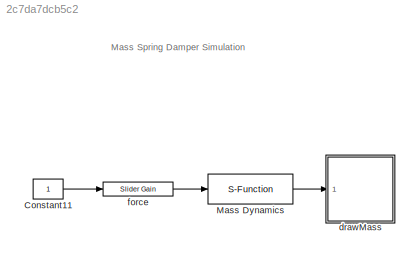
MODEL slx_2c7da7dcb5c2
KIND model
CONFIG AbsTol = auto
CONFIG FixedStep = auto
CONFIG InitFcn = param
CONFIG MaxStep = auto
CONFIG MinStep = auto
CONFIG RelTol = 1e-3
CONFIG SampleTimeConstraint = Unconstrained
CONFIG Solver = ode45
CONFIG SolverMode = Auto
CONFIG SolverName = ode45
CONFIG StartTime = 0.0
CONFIG StopTime = 10000
BLOCK [Constant] Constant11
BLOCK [S-Function] Mass Dynamics
  FunctionName = mass_dynamics
  Parameters = AP
  Ports = [1, 1]
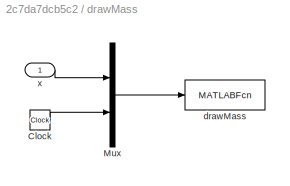
BLOCK [SubSystem] drawMass
  Ports = [1]
  RequestExecContextInheritance = off
BLOCK [Clock] drawMass/Clock
BLOCK [Mux] drawMass/Mux
  DisplayOption = bar
  Inputs = 2
  Ports = [2, 1]
BLOCK [MATLABFcn] drawMass/drawMass
  MATLABFcn = drawMSD(u,w,L)
  OutputDimensions = 0
  Ports = [1]
  SampleTime = 0.1
BLOCK [Inport] drawMass/x
  IconDisplay = Port number
BLOCK [Reference] force  REF=simulink/Math
Operations/Slider
Gain
  Ports = [1, 1]
  SourceBlock = simulink/Math\nOperations/Slider\nGain
  SourceType = Slider Gain
  gain = 2
  high = 10
  low = -10
ANNOTATION (root): Mass Spring Damper Simulation
LINE Constant11:1 -> force:1
LINE Mass Dynamics:1 -> drawMass:1
LINE drawMass/Clock:1 -> drawMass/Mux:2
LINE drawMass/Mux:1 -> drawMass/drawMass:1
LINE drawMass/x:1 -> drawMass/Mux:1
LINE force:1 -> Mass Dynamics:1
